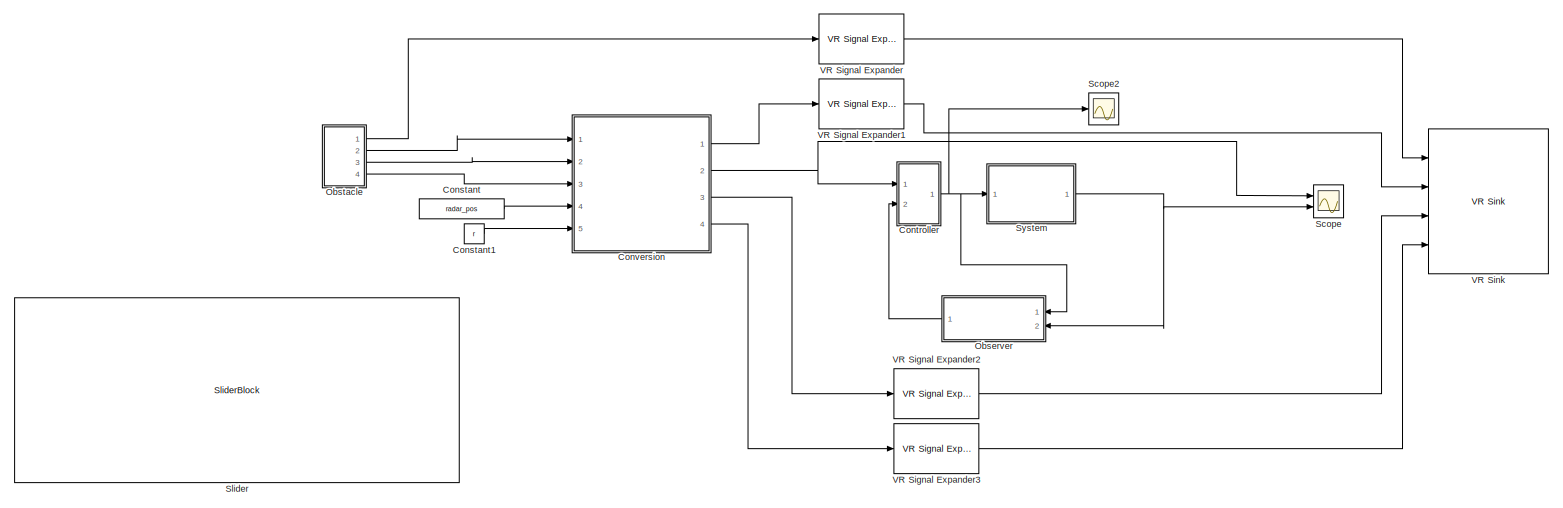
[diagram: root canvas - part 1/1, most of the canvas]
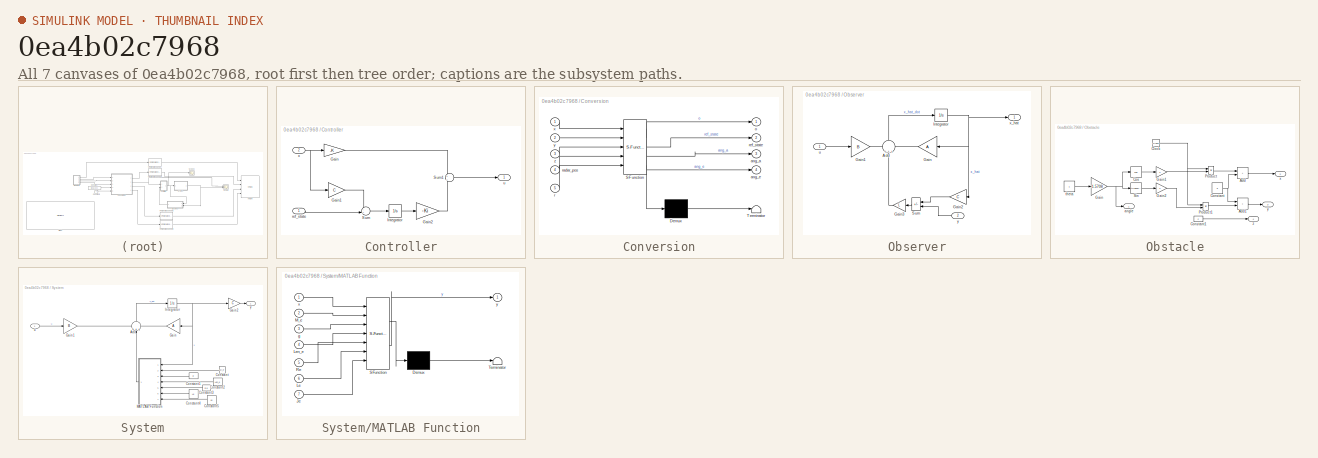
[diagram: thumbnail index - all 7 canvases of the model, root first then tree order]
MODEL slx_0ea4b02c7968
KIND model
CONFIG AbsTol = auto
CONFIG EnableMultiTasking = off
CONFIG FixedStep = auto
CONFIG MaxStep = auto
CONFIG MinStep = auto
CONFIG RelTol = 1e-3
CONFIG SampleTimeConstraint = Unconstrained
CONFIG Solver = VariableStepAuto
CONFIG SolverName = VariableStepAuto
CONFIG StartTime = 0.0
CONFIG StopTime = inf
BLOCK [Constant] Constant
  Value = radar_pos
BLOCK [Constant] Constant1
  Value = r
BLOCK [SubSystem] Controller
  Ports = [2, 1]
  RequestExecContextInheritance = off
BLOCK [Gain] Controller/Gain
  Gain = -K
  Multiplication = Matrix(K*u)
BLOCK [Gain] Controller/Gain1
  Gain = C
  Multiplication = Matrix(K*u)
BLOCK [Gain] Controller/Gain2
  Gain = -Ki
  Multiplication = Matrix(K*u)
BLOCK [Integrator] Controller/Integrator
  Ports = [1, 1]
BLOCK [Sum] Controller/Sum
  Inputs = -+|
  NameLocation = top
  Ports = [2, 1]
BLOCK [Sum] Controller/Sum1
  Inputs = +|+
  Ports = [2, 1]
BLOCK [Inport] Controller/ref_state
BLOCK [Outport] Controller/u
BLOCK [Inport] Controller/x
  Port = 2
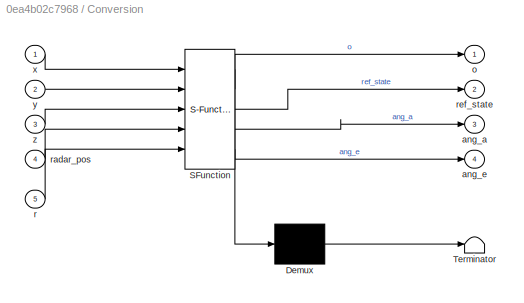
BLOCK [SubSystem] Conversion
  ErrorFcn = Stateflow.Translate.translate
  PermitHierarchicalResolution = ExplicitOnly
  Ports = [5, 4]
  RequestExecContextInheritance = off
  SFBlockType = MATLAB Function
  TreatAsAtomicUnit = on
BLOCK [Demux] Conversion/ Demux 
  Outputs = 1
  Ports = [1, 1]
BLOCK [S-Function] Conversion/ SFunction 
  EnableBusSupport = on
  FunctionName = sf_sfun
  PortCounts = [5 5]
  Ports = [5, 5]
  SFcnIsStateOwnerBlock = off
  SFunctionDeploymentMode = off
  Tag = Stateflow S-Function 1
BLOCK [Terminator] Conversion/ Terminator 
BLOCK [Outport] Conversion/ang_a
  Port = 3
BLOCK [Outport] Conversion/ang_e
  Port = 4
BLOCK [Outport] Conversion/o
BLOCK [Inport] Conversion/r
  Port = 5
BLOCK [Inport] Conversion/radar_pos
  Port = 4
BLOCK [Outport] Conversion/ref_state
  Port = 2
BLOCK [Inport] Conversion/x
BLOCK [Inport] Conversion/y
  Port = 2
BLOCK [Inport] Conversion/z
  Port = 3
BLOCK [SubSystem] Observer
  Ports = [2, 1]
  RequestExecContextInheritance = off
BLOCK [Sum] Observer/Add
  Inputs = +++
  NameLocation = right
  Ports = [3, 1]
BLOCK [Gain] Observer/Gain
  Gain = A
  Multiplication = Matrix(K*u)
BLOCK [Gain] Observer/Gain1
  Gain = B
  Multiplication = Matrix(K*u)
BLOCK [Gain] Observer/Gain2
  Gain = C
  Multiplication = Matrix(K*u)
BLOCK [Gain] Observer/Gain3
  Gain = L
  Multiplication = Matrix(K*u)
BLOCK [Integrator] Observer/Integrator
  IgnoreLimit = on
  InitialCondition = x0
  Ports = [1, 1]
BLOCK [Sum] Observer/Sum
  IconShape = rectangular
  Inputs = -+
  Ports = [2, 1]
BLOCK [Inport] Observer/u
BLOCK [Outport] Observer/x_hat
BLOCK [Inport] Observer/y
  Port = 2
BLOCK [SubSystem] Obstacle
  Ports = [0, 4]
  RequestExecContextInheritance = off
BLOCK [Sum] Obstacle/Add
  IconShape = rectangular
  Ports = [2, 1]
BLOCK [Sum] Obstacle/Add1
  IconShape = rectangular
  Ports = [2, 1]
BLOCK [Clock] Obstacle/Clock
BLOCK [Constant] Obstacle/Constant
  Value = 3
BLOCK [Constant] Obstacle/Constant1
  Value = z
BLOCK [Trigonometry] Obstacle/Cos
  Operator = cos
  Ports = [1, 1]
BLOCK [Gain] Obstacle/Gain
  Gain = 1.5708
BLOCK [Gain] Obstacle/Gain1
  Gain = v
BLOCK [Gain] Obstacle/Gain2
  Gain = v
BLOCK [Product] Obstacle/Product
  Ports = [2, 1]
BLOCK [Product] Obstacle/Product1
  Ports = [2, 1]
BLOCK [Trigonometry] Obstacle/Sin
  Ports = [1, 1]
BLOCK [Outport] Obstacle/angle
BLOCK [Constant] Obstacle/theta
BLOCK [Outport] Obstacle/x
  Port = 2
BLOCK [Outport] Obstacle/y
  Port = 3
BLOCK [Outport] Obstacle/z
  Port = 4
BLOCK [Scope] Scope
  Floating = off
  NumInputPorts = 2
  Ports = [2]
  ScopeSpecificationString = Simulink.scopes.TimeScopeBlockCfg('CurrentConfiguration', extmgr.ConfigurationSet(extmgr.Configuration('Core','General UI',true),extmgr.Configuration('Core','Source UI',true),extmgr.Configuration('Sources','WiredSimulink',true,'DataLoggingVariableName','ScopeData1'),extmgr.Configuration('Visuals','Time Domain',true,'SerializedDisplays',{struct('MinYLimReal','-0.64944','MaxYLimReal','2.11726','YLab...<+1592ch>
BLOCK [Scope] Scope2
  Floating = off
  NumInputPorts = 1
  Ports = [1]
  ScopeSpecificationString = Simulink.scopes.TimeScopeBlockCfg('CurrentConfiguration', extmgr.ConfigurationSet(extmgr.Configuration('Core','General UI',true),extmgr.Configuration('Core','Source UI',true),extmgr.Configuration('Sources','WiredSimulink',true,'DataLoggingVariableName','ScopeData2'),extmgr.Configuration('Visuals','Time Domain',true,'SerializedDisplays',{struct('MinYLimReal','-131132282.62201','MaxYLimReal','105593...<+1474ch>
BLOCK [SliderBlock] Slider
  ScaleMax = 1.5708
  ScaleMin = -1.5708
BLOCK [SubSystem] System
  Ports = [1, 1]
  RequestExecContextInheritance = off
BLOCK [Sum] System/Add
  Inputs = +++
  NameLocation = right
  Ports = [3, 1]
BLOCK [Constant] System/Constant
  Value = M_e
BLOCK [Constant] System/Constant1
  Value = g
BLOCK [Constant] System/Constant2
  Value = Len_e
BLOCK [Constant] System/Constant3
  Value = Re
BLOCK [Constant] System/Constant4
  Value = Le
BLOCK [Constant] System/Constant5
  Value = Je
BLOCK [Gain] System/Gain
  Gain = A
  Multiplication = Matrix(K*u)
BLOCK [Gain] System/Gain1
  Gain = B
  Multiplication = Matrix(K*u)
BLOCK [Gain] System/Gain2
  Gain = C
  Multiplication = Matrix(K*u)
BLOCK [Integrator] System/Integrator
  IgnoreLimit = on
  InitialCondition = x_r
  Ports = [1, 1]
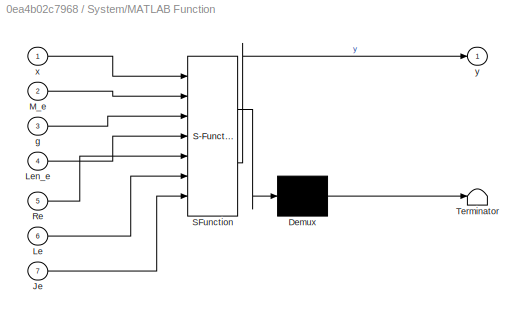
BLOCK [SubSystem] System/MATLAB Function
  ErrorFcn = Stateflow.Translate.translate
  PermitHierarchicalResolution = ExplicitOnly
  Ports = [7, 1]
  RequestExecContextInheritance = off
  SFBlockType = MATLAB Function
  TreatAsAtomicUnit = on
BLOCK [Demux] System/MATLAB Function/ Demux 
  Outputs = 1
  Ports = [1, 1]
BLOCK [S-Function] System/MATLAB Function/ SFunction 
  EnableBusSupport = on
  FunctionName = sf_sfun
  PortCounts = [7 2]
  Ports = [7, 2]
  SFcnIsStateOwnerBlock = off
  SFunctionDeploymentMode = off
  Tag = Stateflow S-Function 2
BLOCK [Terminator] System/MATLAB Function/ Terminator 
BLOCK [Inport] System/MATLAB Function/Je
  Port = 7
BLOCK [Inport] System/MATLAB Function/Le
  Port = 6
BLOCK [Inport] System/MATLAB Function/Len_e
  Port = 4
BLOCK [Inport] System/MATLAB Function/M_e
  Port = 2
BLOCK [Inport] System/MATLAB Function/Re
  Port = 5
BLOCK [Inport] System/MATLAB Function/g
  Port = 3
BLOCK [Inport] System/MATLAB Function/x
BLOCK [Outport] System/MATLAB Function/y
BLOCK [Inport] System/u
BLOCK [Outport] System/y
BLOCK [Reference] VR Signal Expander  REF=vrlib/VR Signal Expander
  Ports = [1, 1]
  SourceBlock = vrlib/VR Signal Expander
  SourceProductBaseCode = SL
  SourceType = VR Signal Expander
BLOCK [Reference] VR Signal Expander1  REF=vrlib/VR Signal Expander
  Ports = [1, 1]
  SourceBlock = vrlib/VR Signal Expander
  SourceProductBaseCode = SL
  SourceType = VR Signal Expander
BLOCK [Reference] VR Signal Expander2  REF=vrlib/VR Signal Expander
  Ports = [1, 1]
  SourceBlock = vrlib/VR Signal Expander
  SourceProductBaseCode = SL
  SourceType = VR Signal Expander
BLOCK [Reference] VR Signal Expander3  REF=vrlib/VR Signal Expander
  Ports = [1, 1]
  SourceBlock = vrlib/VR Signal Expander
  SourceProductBaseCode = SL
  SourceType = VR Signal Expander
BLOCK [Reference] VR Sink  REF=vrlib/VR Sink
  InstantiateOnLoad = on
  Ports = [4]
  SourceBlock = vrlib/VR Sink
  SourceProductBaseCode = SL
  SourceType = Virtual Reality Sink
LINE Constant1:1 -> Conversion:5
LINE Constant:1 -> Conversion:4
LINE Controller/Gain1:1 -> Controller/Sum:1
LINE Controller/Gain2:1 -> Controller/Sum1:2
LINE Controller/Gain:1 -> Controller/Sum1:1
LINE Controller/Integrator:1 -> Controller/Gain2:1
LINE Controller/Sum1:1 -> Controller/u:1
LINE Controller/Sum:1 -> Controller/Integrator:1
LINE Controller/ref_state:1 -> Controller/Sum:2
NET Controller/x:1 -> Controller/Gain1:1, Controller/Gain:1
NET Controller:1 -> Observer:1, Scope2:1, System:1
LINE Conversion:1 -> VR Signal Expander1:1
NET Conversion:2 -> Controller:1, Scope:1
LINE Conversion:3 -> VR Signal Expander2:1
LINE Conversion:4 -> VR Signal Expander3:1
LINE Observer/Add:1 -> Observer/Integrator:1
LINE Observer/Gain1:1 -> Observer/Add:1
LINE Observer/Gain2:1 -> Observer/Sum:1
LINE Observer/Gain3:1 -> Observer/Add:2
LINE Observer/Gain:1 -> Observer/Add:3
NET Observer/Integrator:1 -> Observer/Gain2:1, Observer/Gain:1, Observer/x_hat:1
LINE Observer/Sum:1 -> Observer/Gain3:1
LINE Observer/u:1 -> Observer/Gain1:1
LINE Observer/y:1 -> Observer/Sum:2
LINE Observer:1 -> Controller:2
LINE Obstacle/Add1:1 -> Obstacle/y:1
LINE Obstacle/Add:1 -> Obstacle/x:1
NET Obstacle/Clock:1 -> Obstacle/Product1:1, Obstacle/Product:1
LINE Obstacle/Constant1:1 -> Obstacle/z:1
NET Obstacle/Constant:1 -> Obstacle/Add1:1, Obstacle/Add:2
LINE Obstacle/Cos:1 -> Obstacle/Gain1:1
LINE Obstacle/Gain1:1 -> Obstacle/Product:2
LINE Obstacle/Gain2:1 -> Obstacle/Product1:2
NET Obstacle/Gain:1 -> Obstacle/Cos:1, Obstacle/Sin:1, Obstacle/angle:1
LINE Obstacle/Product1:1 -> Obstacle/Add1:2
LINE Obstacle/Product:1 -> Obstacle/Add:1
LINE Obstacle/Sin:1 -> Obstacle/Gain2:1
LINE Obstacle/theta:1 -> Obstacle/Gain:1
LINE Obstacle:1 -> VR Signal Expander:1
LINE Obstacle:2 -> Conversion:1
LINE Obstacle:3 -> Conversion:2
LINE Obstacle:4 -> Conversion:3
LINE System/Add:1 -> System/Integrator:1
LINE System/Constant1:1 -> System/MATLAB Function:3
LINE System/Constant2:1 -> System/MATLAB Function:4
LINE System/Constant3:1 -> System/MATLAB Function:5
LINE System/Constant4:1 -> System/MATLAB Function:6
LINE System/Constant5:1 -> System/MATLAB Function:7
LINE System/Constant:1 -> System/MATLAB Function:2
LINE System/Gain1:1 -> System/Add:1
LINE System/Gain2:1 -> System/y:1
LINE System/Gain:1 -> System/Add:3
NET System/Integrator:1 -> System/Gain2:1, System/Gain:1, System/MATLAB Function:1
LINE System/MATLAB Function:1 -> System/Add:2
LINE System/u:1 -> System/Gain1:1
NET System:1 -> Observer:2, Scope:2
LINE VR Signal Expander1:1 -> VR Sink:2
LINE VR Signal Expander2:1 -> VR Sink:3
LINE VR Signal Expander3:1 -> VR Sink:4
LINE VR Signal Expander:1 -> VR Sink:1
note: NET lines group one-source signal fan-out (src -> all destinations, sorted); 1:1 wires keep LINE
CHART Conversion states=1 transitions=1
  STATE_LABEL 'eML_blk_kernel()'
  STATE_LABEL 'SCRIPT:\nfunction [o, ref_state, ang_a , ang_e] = PlaneToAngle(x,y,z,radar_pos,r)\n\n%-------------------------------------------\na1 = x^2 + y^2; b1 = -2*(r^2)*x ; c1 = -(y^2)*r^2 + r^4;\nat1 = (-b1 + sqrt(b1^2 - 4*a1*c1))/(2*a1);\nat2 = (-b1 - sqrt(b1^2 - 4*a1*c1))/(2*a1);\nbt1 = sqrt(r^2 - at1^2);\nbt2 = sqrt(r^2 - at2^2);\n%-----------------------------------------\nt1 = -pi/2 + atan2(-bt1,-at1);\np1x = ...<+398ch>'
CHART System/MATLAB Function states=1 transitions=1
  STATE_LABEL 'eML_blk_kernel()'
  STATE_LABEL 'SCRIPT:\nfunction y = Nonlinearities(x,M_e,g,Len_e,Re,Le,Je) %x is 6x1 vector\ny = [0;\n     0;\n     0;\n     0;\n     0;\n     (M_e*g*Len_e*Re*sin(x(4))*x(5) - Re*M_e*g*Len_e*cos(x(4)))/(2*Le*Je);\n     ];\n \n '
CHART  states=0 transitions=0
CHART  states=0 transitions=0
